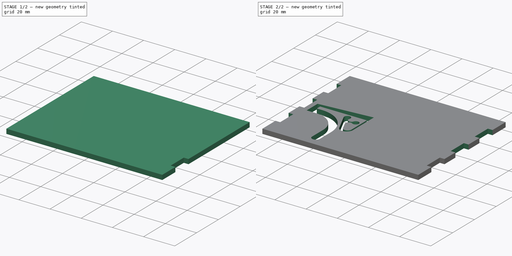
[diagram: build sequence overview — one tinted view per stage of 2, left to right]
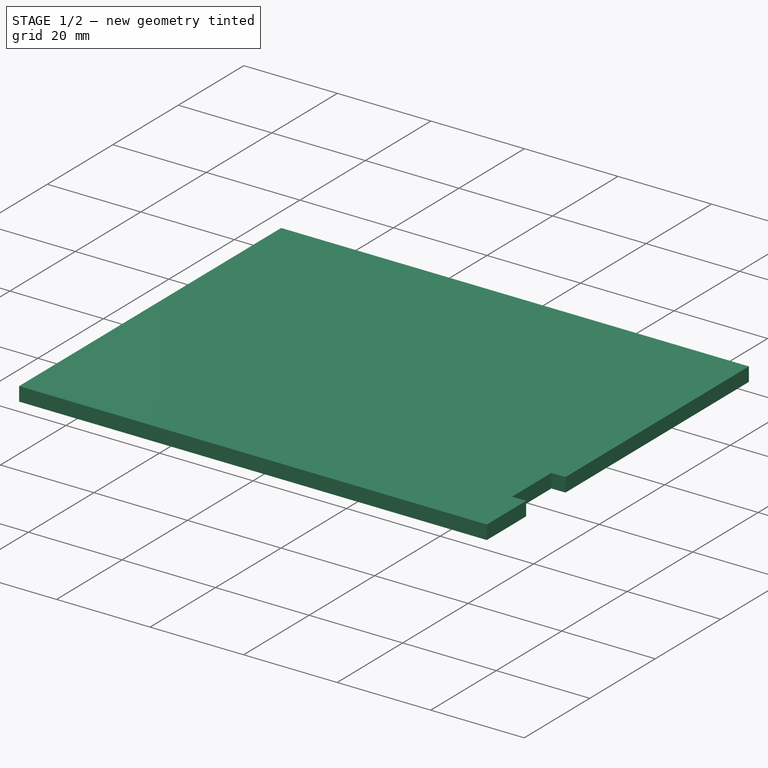
[diagram: stage 1 of 2 — iso view after this stage's code; geometry added in this stage tinted green]
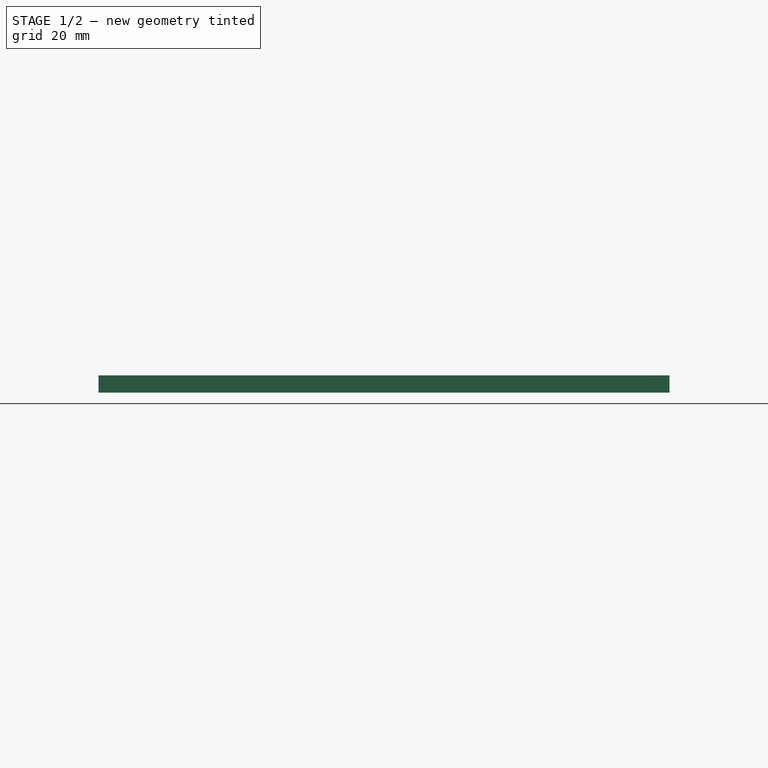
[diagram: stage 1 of 2 — front view after this stage's code; geometry added in this stage tinted green]
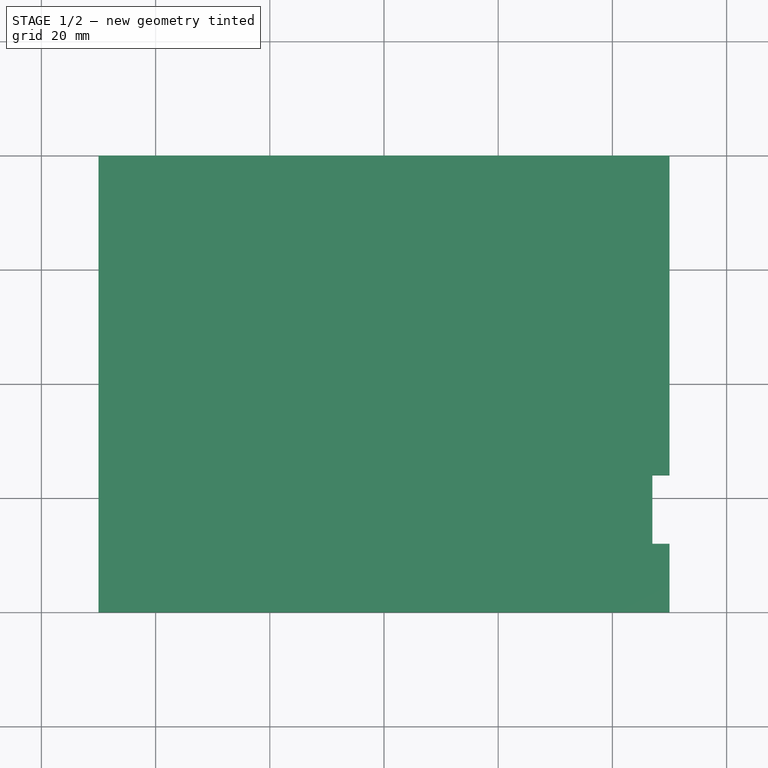
[diagram: stage 1 of 2 — top view after this stage's code; geometry added in this stage tinted green]
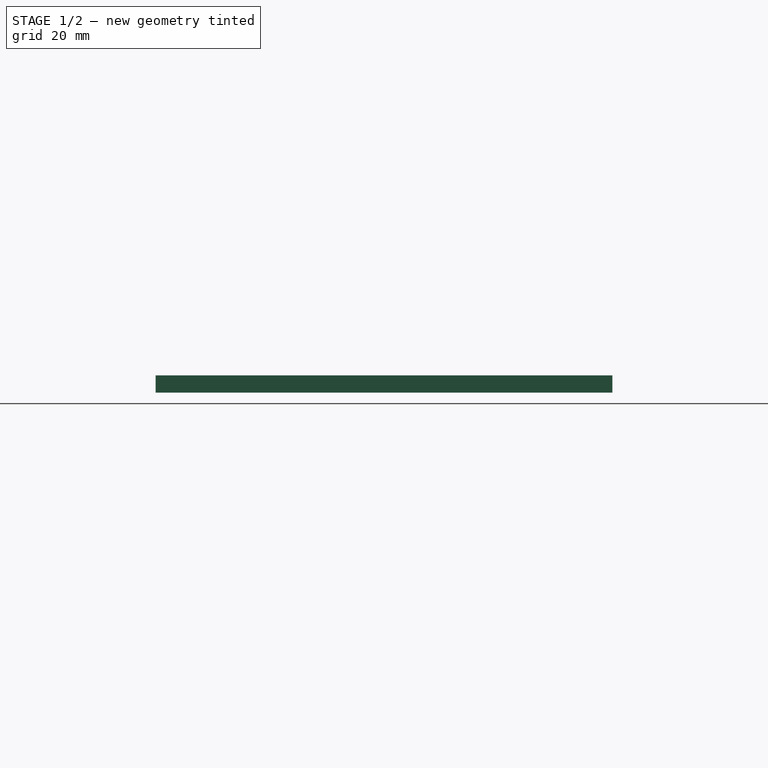
[diagram: stage 1 of 2 — right view after this stage's code; geometry added in this stage tinted green]
FCSTD DOCUMENT  (FreeCAD 0.19R)
Label: box_top
License: Creative Commons Attribution-ShareAlike
LicenseURL: http://creativecommons.org/licenses/by-sa/4.0/
objects: PartDesign::SubShapeBinder×2, PartDesign::Pocket×2, PartDesign::Pad×1, PartDesign::Mirrored×1, PartDesign::LinearPattern×1, PartDesign::MultiTransform×1, Sketcher::SketchObject×1, PartDesign::Body×1, App::Part×1
note: 13 computed .brp shape members not serialized (recipe doc carries the construction recipe); baked Part::Feature solids carry a one-line shape summary decoded from their .brp
EXTERNAL_REF file=base.FCStd obj=Part
EXTERNAL_REF file=base.FCStd obj=Spreadsheet
EXTERNAL_REF file=base.FCStd obj=Sketch004

FEATURE [PartDesign::SubShapeBinder] Binder  label="box_top_Binder"
  BindMode = 0
  ClaimChildren = false
  Context = -> Part [Link.Binder.]
  Fuse = false
  MakeFace = true
  PartialLoad = false
  Relative = true
  Support = -> [<external base.FCStd>#Part[Body.Sketch003.]]
  _Version = 2
FEATURE [PartDesign::Pad] Pad
  Direction = (1,1,1)
  Length = 3
  Length2 = 100
  Profile = -> Binder
  Type = 0
  expr: Length = base#<<base_values>>.wood
FEATURE [PartDesign::SubShapeBinder] Binder001  label="joint_right_Binder001"
  BindMode = 0
  ClaimChildren = false
  Context = -> Part [Link.Binder001.]
  Fuse = false
  MakeFace = true
  PartialLoad = false
  Relative = true
  Support = -> [<external base.FCStd>#Part[Body.Sketch005.]]
  _Version = 2
FEATURE [PartDesign::Pocket] Pocket
  BaseFeature = -> Pad
  Length = 5
  Length2 = 100
  Midplane = true
  Profile = -> Binder001
  Type = 1
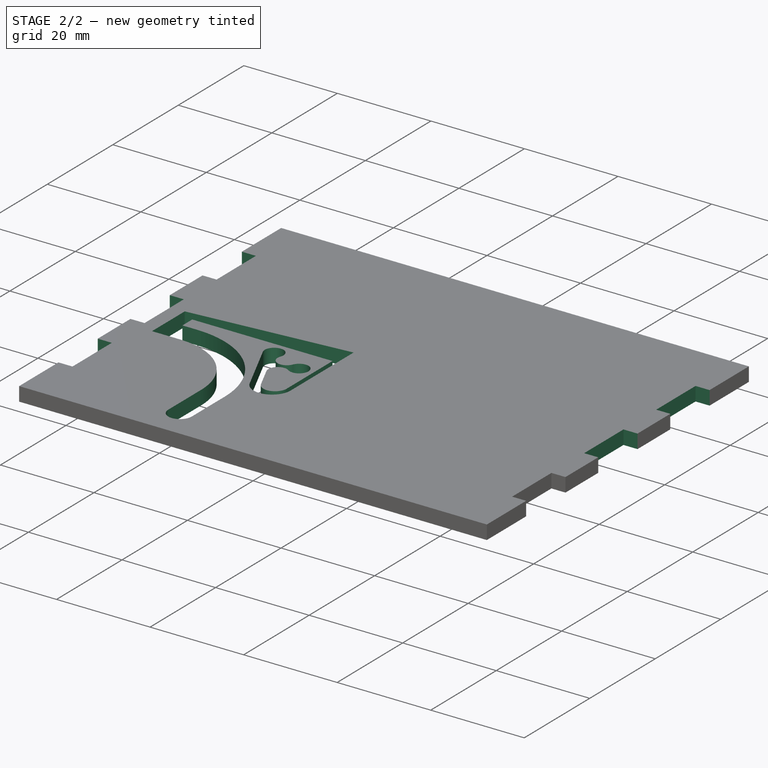
[diagram: stage 2 of 2 — iso view after this stage's code; geometry added in this stage tinted green]
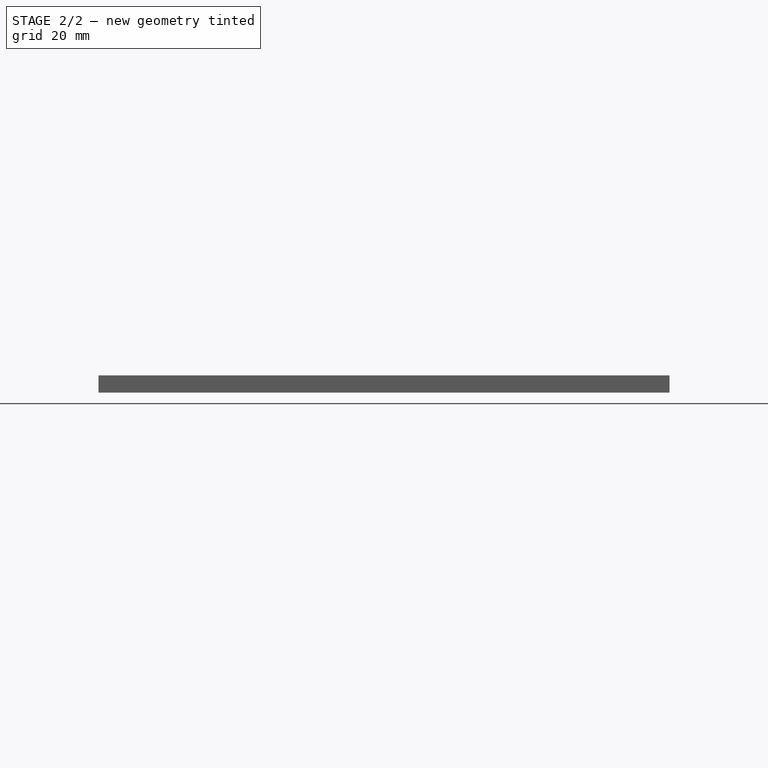
[diagram: stage 2 of 2 — front view after this stage's code; geometry added in this stage tinted green]
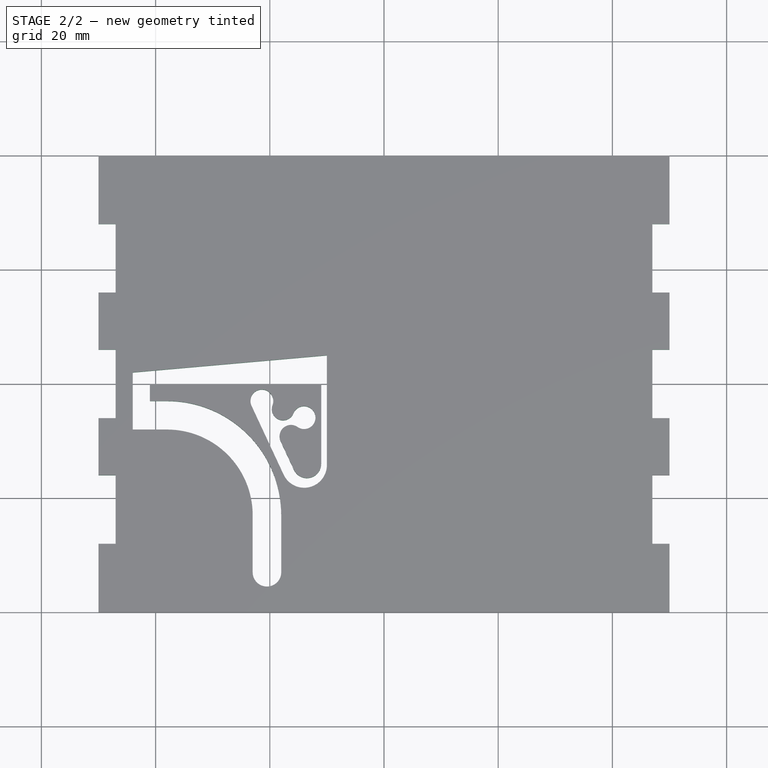
[diagram: stage 2 of 2 — top view after this stage's code; geometry added in this stage tinted green]
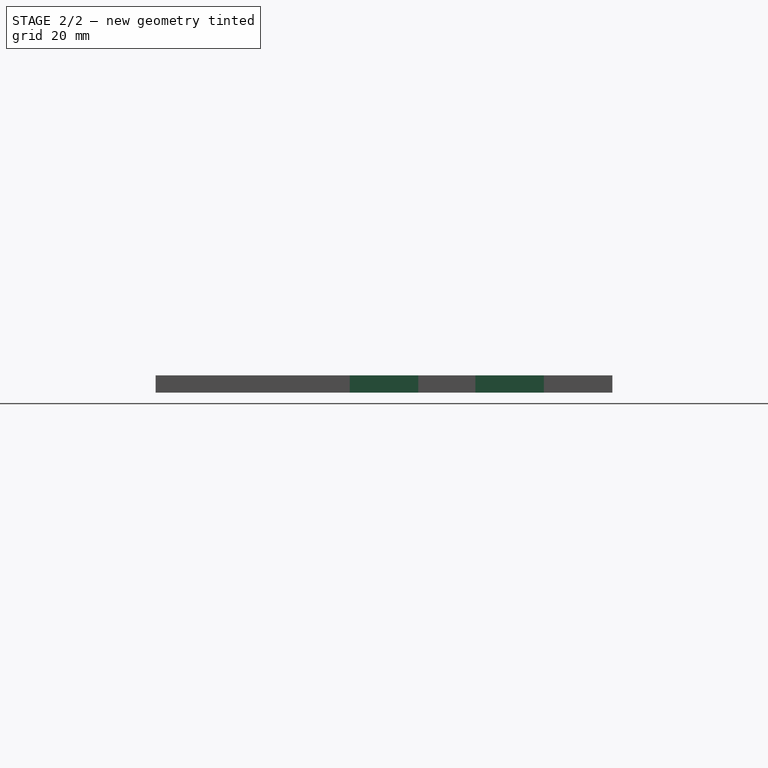
[diagram: stage 2 of 2 — right view after this stage's code; geometry added in this stage tinted green]
FEATURE [PartDesign::Mirrored] Mirrored
  MirrorPlane = -> YZ_Plane001
FEATURE [PartDesign::LinearPattern] LinearPattern
  Direction = -> Y_Axis001
  Length = 44
  Occurrences = 3
  expr: Length = base#<<joint_right_base>>.Constraints.array_y
FEATURE [PartDesign::MultiTransform] MultiTransform
  BaseFeature = -> Pocket
  Originals = -> [Pocket]
  Transformations = -> [Mirrored,LinearPattern]
FEATURE [Sketcher::SketchObject] Sketch006
  FullyConstrained = true
  MapMode = 5
  Placement = pos=(0,0,25) rot=(0,0,1;0rad)
  Support = -> [Binder]
  sketch-geometry (30):
    g0: LineSegment StartX=-44 StartY=2 StartZ=0 EndX=-44 EndY=-8 EndZ=0
    g1: LineSegment StartX=-44 StartY=-8 StartZ=0 EndX=-38 EndY=-8 EndZ=0
    g2: ArcOfCircle CenterX=-38 CenterY=-23 CenterZ=0 NormalX=0 NormalY=0 NormalZ=1 AngleXU=0 Radius=15 StartAngle=2e-16 EndAngle=1.5708
    g3: LineSegment StartX=-23 StartY=-23 StartZ=0 EndX=-23 EndY=-33 EndZ=0
    g4: ArcOfCircle CenterX=-20.5 CenterY=-33 CenterZ=0 NormalX=0 NormalY=0 NormalZ=1 AngleXU=0 Radius=2.5 StartAngle=3.14159 EndAngle=6.28319
    g5: LineSegment StartX=-18 StartY=-33 StartZ=0 EndX=-18 EndY=-23 EndZ=0
    g6: ArcOfCircle CenterX=-38 CenterY=-23 CenterZ=0 NormalX=0 NormalY=0 NormalZ=1 AngleXU=0 Radius=20 StartAngle=0 EndAngle=1.5708
    g7: LineSegment StartX=-38 StartY=-3 StartZ=0 EndX=-41 EndY=-3 EndZ=0
    g8: LineSegment StartX=-41 StartY=-3 StartZ=0 EndX=-41 EndY=0 EndZ=0
    g9: LineSegment StartX=-41 StartY=0 StartZ=0 EndX=-11 EndY=0 EndZ=0
    g10: LineSegment StartX=-11 StartY=0 StartZ=0 EndX=-11 EndY=-13 EndZ=0
    g11: LineSegment StartX=-11 StartY=-13 StartZ=0 EndX=-10 EndY=-13 EndZ=0
    g12: LineSegment StartX=-10 StartY=-13 StartZ=0 EndX=-10 EndY=5 EndZ=0
    g13: LineSegment StartX=-10 StartY=5 StartZ=0 EndX=-44 EndY=2 EndZ=0
    g14: LineSegment StartX=-23 StartY=-23 StartZ=0 EndX=-18 EndY=-23 EndZ=0
    g15: LineSegment StartX=-38 StartY=-8 StartZ=0 EndX=-38 EndY=-3 EndZ=0
    g16: LineSegment StartX=-11 StartY=-13 StartZ=0 EndX=-11 EndY=-14 EndZ=0
    g17: ArcOfCircle CenterX=-13.5 CenterY=-14 CenterZ=0 NormalX=0 NormalY=0 NormalZ=1 AngleXU=0 Radius=2.5 StartAngle=3.57792 EndAngle=6.28319
    g18: LineSegment StartX=-15.7658 StartY=-15.0565 StartZ=0 EndX=-18.1069 EndY=-10.0359 EndZ=0
    g19: ArcOfCircle CenterX=-16.2943 CenterY=-9.19069 CenterZ=0 NormalX=0 NormalY=0 NormalZ=1 AngleXU=0 Radius=2 StartAngle=0.959931 EndAngle=3.57792
    g20: ArcOfCircle CenterX=-14 CenterY=-5.91408 CenterZ=0 NormalX=0 NormalY=0 NormalZ=1 AngleXU=0 Radius=2 StartAngle=4.10152 EndAngle=9.03794
    g21: ArcOfCircle CenterX=-17.6777 CenterY=-4.41592 CenterZ=0 NormalX=0 NormalY=0 NormalZ=1 AngleXU=0 Radius=1.97114 StartAngle=2.77702 EndAngle=5.89635
    g22: ArcOfCircle CenterX=-21.3878 CenterY=-3 CenterZ=0 NormalX=0 NormalY=0 NormalZ=1 AngleXU=0 Radius=2 StartAngle=5.91861 EndAngle=9.86111
    g23: LineSegment StartX=-23.2004 StartY=-3.84524 StartZ=0 EndX=-17.5784 EndY=-15.9018 EndZ=0
    g24: ArcOfCircle CenterX=-13.9754 CenterY=-14.2217 CenterZ=0 NormalX=0 NormalY=0 NormalZ=1 AngleXU=0 Radius=3.97543 StartAngle=3.57792 EndAngle=6.28319
    g25: LineSegment StartX=-10 StartY=-14.2217 StartZ=0 EndX=-10 EndY=-13 EndZ=0
    g26: LineSegment StartX=-17.5784 StartY=-15.9018 StartZ=0 EndX=-15.7658 EndY=-15.0565 EndZ=0
    g27: LineSegment StartX=-17.1292 StartY=-6.3092 StartZ=0 EndX=-16.8509 EndY=-7.2697 EndZ=0
    g28: LineSegment StartX=-11 StartY=-5.91408 StartZ=0 EndX=-12 EndY=-5.91408 EndZ=0
    g29: LineSegment StartX=-21.3878 StartY=0 StartZ=0 EndX=-21.3878 EndY=-1 EndZ=0
  constraints (79):
    c: Vertical(g0)
    c: Coincident(g0,g1)
    c: Horizontal(g1)
    c: Tangent(g1,g2) = 1.5708
    c: Tangent(g2,g3) = 1.5708
    c: Tangent(g3,g4) = -1.5708
    c: Tangent(g4,g5) = -1.5708
    c: Tangent(g5,g6) = -1.5708
    c: Tangent(g6,g7) = -1.5708
    c: Coincident(g7,g8)
    c: Vertical(g8)
    c: Coincident(g8,g9)
    c: Horizontal(g9)
    c: Coincident(g9,g10)
    c: Vertical(g10)
    c: Coincident(g10,g11)
    c: Horizontal(g11)
    c: Coincident(g11,g12)
    c: Vertical(g12)
    c: Coincident(g12,g13)
    c: Coincident(g13,g0)
    c: Coincident(g14,g2)
    c: Horizontal(g14)
    c: Coincident(g5,g14)
    c: Vertical(g5)
    c: Vertical(g3)
    c: Horizontal(g7)
    c: Coincident(g15,g1)
    c: Coincident(g6,g15)
    c: Equal(g15,g14)
    c: DistanceX(g14,g14) = 5
    c: DistanceY(g5,g5) = 10
    c: DistanceX(g12) = -10
    c: DistanceY(g12) = 5
    c: DistanceX(g11,g11) = 1
    c: DistanceY(g9,g12) = 5
    c: DistanceY(g8,g0) = 2
    c: DistanceX(g0,g8) = 3
    c: DistanceX(g9,g9) = 30
    c: DistanceY(g0,g0) = 10
    c: DistanceX(g1,g1) = 6
    c: DistanceX(g1,g2) = 15
    c: Vertical(g16)
    c: Tangent(g16,g17) = 1.5708
    c: Tangent(g17,g18) = 1.5708
    c: Tangent(g18,g19) = 1.5708
    c: Tangent(g19,g20) = 1.5708
    c: Tangent(g20,g21) = 1.5708
    c: Tangent(g21,g22) = 1.5708
    c: Tangent(g22,g23) = -1.5708
    c: Tangent(g23,g24) = -1.5708
    c: Tangent(g24,g25) = -1.5708
    c: Coincident(g25,g12)
    c: Coincident(g16,g10)
    c: Vertical(g25)
    c: Coincident(g26,g23)
    c: Coincident(g17,g26)
    c: Perpendicular(g23,g26)
    c: Parallel(g23,g18)
    c: Distance(g26) = 2
    c: Equal(g19,g20)
    c: Radius(g19) = 2
    c: Angle(g19) = 2.61799
    c: Perpendicular(g27,g21) = 1.5708
    c: Perpendicular(g27,g19) = 4.71239
    c: Distance(g27) = 1
    c: Equal(g11,g16)
    c: Radius(g22) = 2
    c: Angle(g18) = 2.00713
    c: Radius(g17) = 2.5
    c: PointOnObject(g28,g10)
    c: Horizontal(g28)
    c: Perpendicular(g28,g20) = 4.71239
    c: Equal(g28,g11)
    c: Vertical(g29)
    c: Perpendicular(g29,g22) = 4.71239
    c: PointOnObject(g29,g9)
    c: Equal(g29,g28)
    c: DistanceY(g12,g12) = 18
FEATURE [PartDesign::Pocket] Pocket001
  BaseFeature = -> MultiTransform
  Length = 5
  Length2 = 100
  Midplane = true
  Profile = -> Sketch006
  Type = 1
FEATURE [PartDesign::Body] Body  label="box_top_Body"
  Group = -> [Binder,Pad,Binder001,Pocket,MultiTransform,Mirrored,LinearPattern,Sketch006,Pocket001]
  Origin = -> Origin001
  Tip = -> Pocket001
FEATURE [App::Part] Part  label="box_top"
  Group = -> [Body]
  Origin = -> Origin
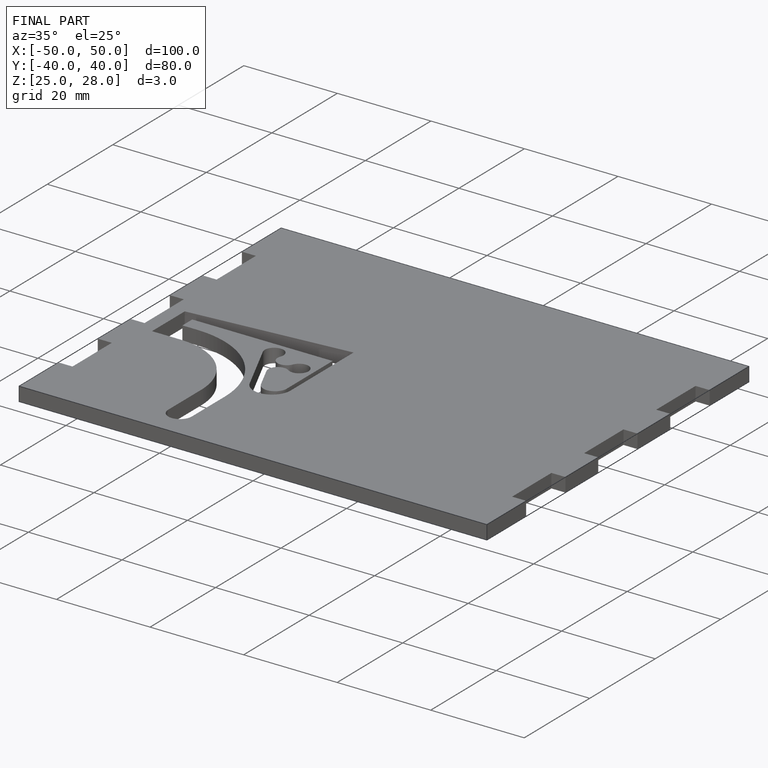
[diagram: finished part — iso view with bounding-box wireframe]
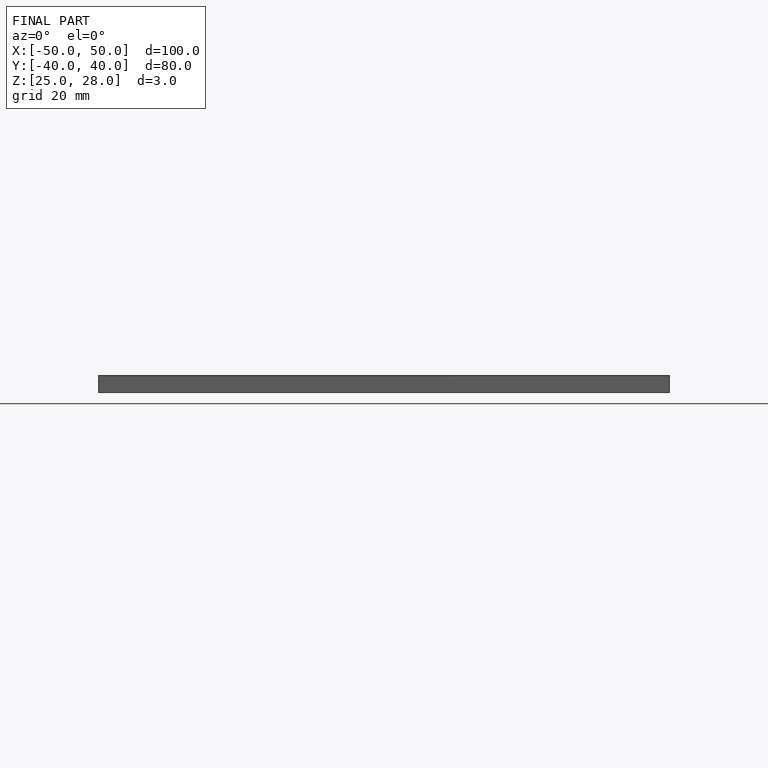
[diagram: finished part — front view with bounding-box wireframe]
